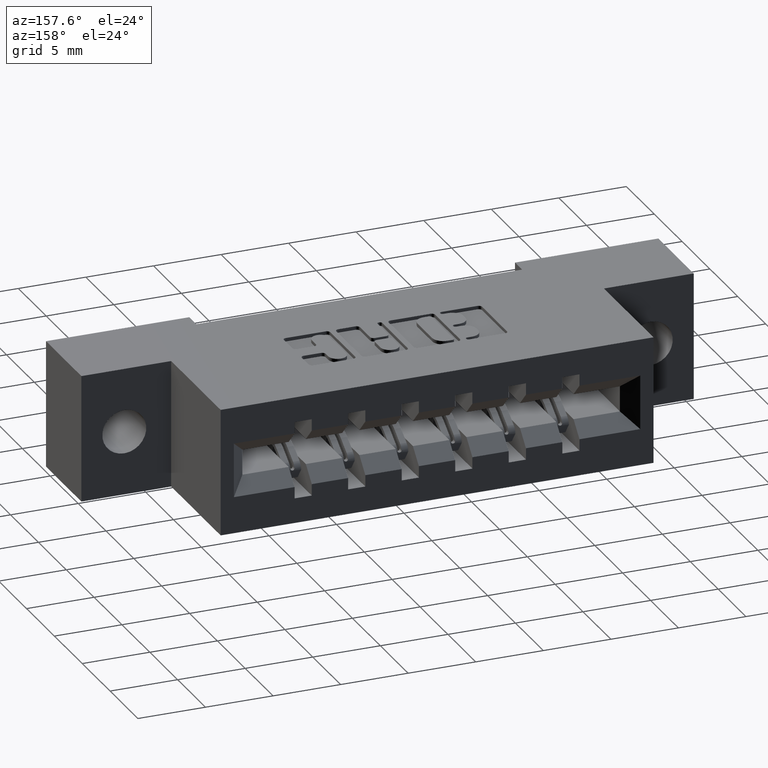
[diagram: clean part render]
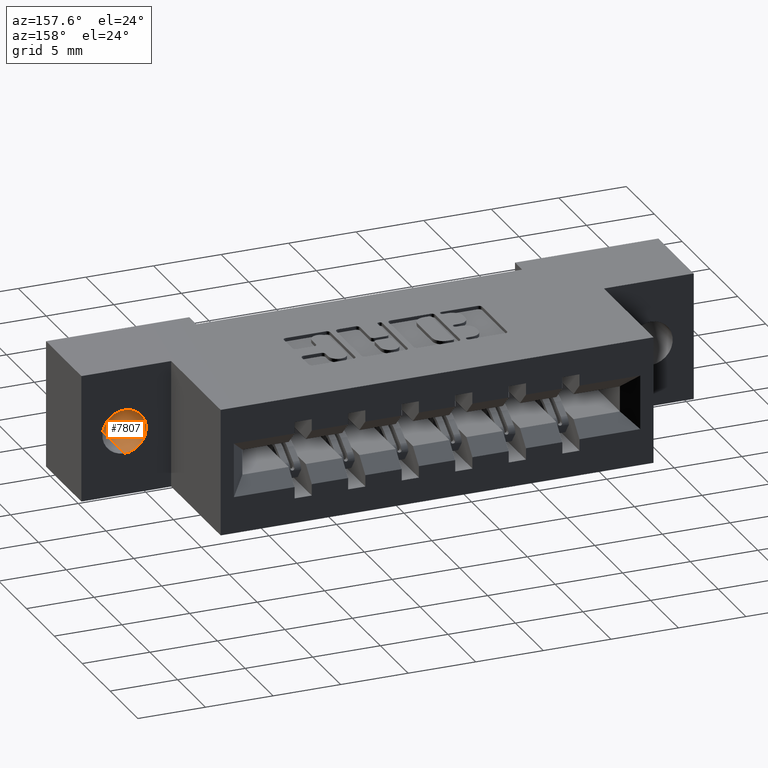
[diagram: same view with one face highlighted and labeled with its STEP entity id]
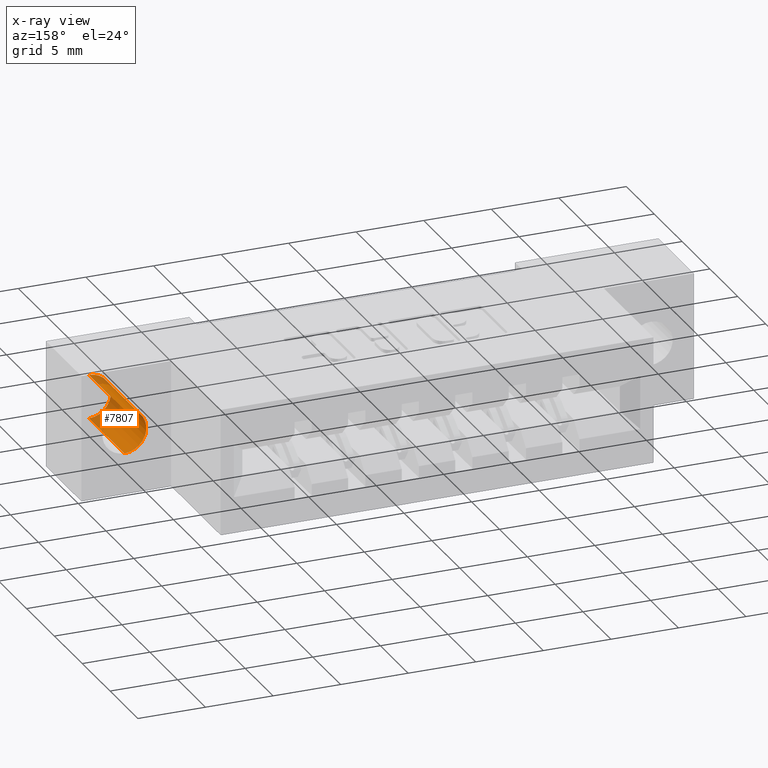
[diagram: x-ray of the same camera — body ghosted, the highlighted face saturated]
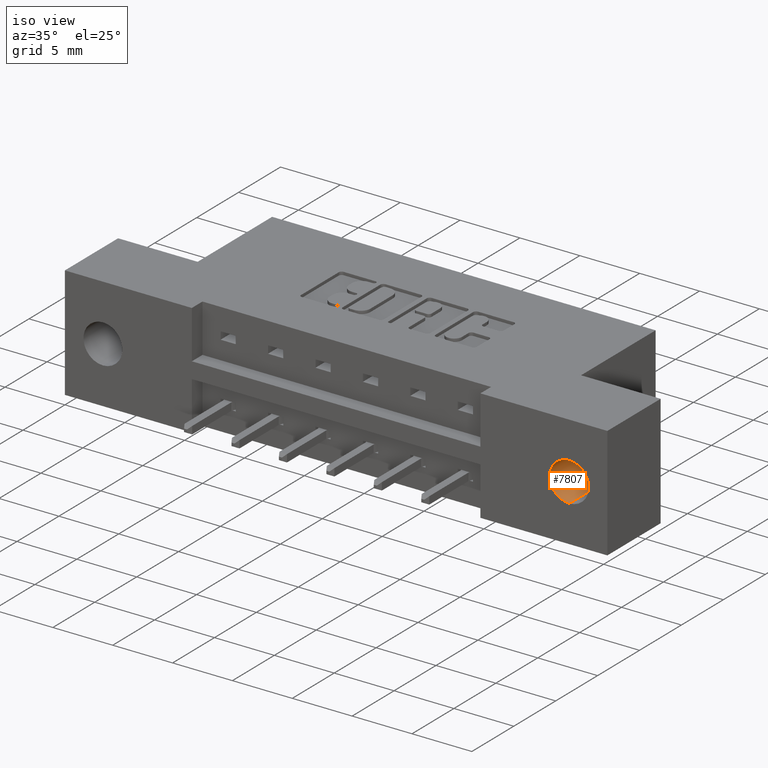
[diagram: same view with one face highlighted and labeled with its STEP entity id]
A machine part, auxiliary view. The second image highlights one B-rep face of the part: STEP entity #7807.
The next image is the same camera in x-ray: the body ghosted, the highlighted face saturated — about 22% of this face is hidden behind the body in this view.
A second angle (iso view) of the same face is appended — the face is thin or edge-on in the first view.
In plain terms, the highlighted cylindrical surface (edge-blend (fillet) strip) has radius 1.6256 mm, axis along (0, 1, 0).
Its self-contained STEP definition (entity closure, byte-faithful):
#429 = CARTESIAN_POINT ( 'NONE',  ( 1.659000000000001362, 0.2500000000000000000, -0.2490000000000000546 ) ) ;
#695 = ORIENTED_EDGE ( 'NONE', *, *, #2440, .T. ) ;
#740 = AXIS2_PLACEMENT_3D ( 'NONE', #6748, #951, #6102 ) ;
#747 = CARTESIAN_POINT ( 'NONE',  ( 1.659000000000001362, 0.0000000000000000000, -0.2490000000000000546 ) ) ;
#951 = DIRECTION ( 'NONE',  ( -0.0000000000000000000, 1.000000000000000000, -0.0000000000000000000 ) ) ;
#998 = DIRECTION ( 'NONE',  ( 0.0000000000000000000, 0.0000000000000000000, -1.000000000000000000 ) ) ;
#1136 = CARTESIAN_POINT ( 'NONE',  ( 1.659000000000001362, 0.0000000000000000000, -0.2490000000000000546 ) ) ;
#1354 = ORIENTED_EDGE ( 'NONE', *, *, #8118, .F. ) ;
#1661 = ORIENTED_EDGE ( 'NONE', *, *, #5529, .T. ) ;
#1723 = VERTEX_POINT ( 'NONE', #429 ) ;
#1789 = CARTESIAN_POINT ( 'NONE',  ( 1.659000000000001362, 0.0000000000000000000, -0.1210000000000003434 ) ) ;
#2074 = DIRECTION ( 'NONE',  ( -0.0000000000000000000, 1.000000000000000000, -0.0000000000000000000 ) ) ;
#2225 = VERTEX_POINT ( 'NONE', #1136 ) ;
#2412 = AXIS2_PLACEMENT_3D ( 'NONE', #4264, #7346, #5523 ) ;
#2417 = EDGE_LOOP ( 'NONE', ( #3673, #1661, #695, #1354 ) ) ;
#2440 = EDGE_CURVE ( 'NONE', #1723, #4236, #5783, .T. ) ;
#2643 = VECTOR ( 'NONE', #2074, 39.37007874015748143 ) ;
#3031 = CARTESIAN_POINT ( 'NONE',  ( 1.659000000000001362, 0.0000000000000000000, -0.1850000000000002198 ) ) ;
#3673 = ORIENTED_EDGE ( 'NONE', *, *, #7390, .F. ) ;
#3982 = LINE ( 'NONE', #4658, #2643 ) ;
#4033 = VECTOR ( 'NONE', #4567, 39.37007874015748143 ) ;
#4170 = CYLINDRICAL_SURFACE ( 'NONE', #740, 0.06399999999999984868 ) ;
#4220 = FACE_OUTER_BOUND ( 'NONE', #2417, .T. ) ;
#4236 = VERTEX_POINT ( 'NONE', #8219 ) ;
#4264 = CARTESIAN_POINT ( 'NONE',  ( 1.659000000000001362, 0.2500000000000000000, -0.1850000000000002198 ) ) ;
#4420 = LINE ( 'NONE', #747, #4033 ) ;
#4567 = DIRECTION ( 'NONE',  ( -0.0000000000000000000, 1.000000000000000000, -0.0000000000000000000 ) ) ;
#4658 = CARTESIAN_POINT ( 'NONE',  ( 1.659000000000001362, 0.0000000000000000000, -0.1210000000000003573 ) ) ;
#5250 = AXIS2_PLACEMENT_3D ( 'NONE', #3031, #6592, #998 ) ;
#5523 = DIRECTION ( 'NONE',  ( 0.0000000000000000000, 0.0000000000000000000, -1.000000000000000000 ) ) ;
#5529 = EDGE_CURVE ( 'NONE', #2225, #1723, #4420, .T. ) ;
#5661 = CIRCLE ( 'NONE', #5250, 0.06399999999999984868 ) ;
#5783 = CIRCLE ( 'NONE', #2412, 0.06399999999999984868 ) ;
#6102 = DIRECTION ( 'NONE',  ( 0.0000000000000000000, 0.0000000000000000000, 1.000000000000000000 ) ) ;
#6592 = DIRECTION ( 'NONE',  ( 0.0000000000000000000, 1.000000000000000000, -0.0000000000000000000 ) ) ;
#6748 = CARTESIAN_POINT ( 'NONE',  ( 1.659000000000001362, 0.0000000000000000000, -0.1850000000000002198 ) ) ;
#7346 = DIRECTION ( 'NONE',  ( 0.0000000000000000000, 1.000000000000000000, -0.0000000000000000000 ) ) ;
#7390 = EDGE_CURVE ( 'NONE', #2225, #7880, #5661, .T. ) ;
#7807 = ADVANCED_FACE ( 'NONE', ( #4220 ), #4170, .F. ) ;
#7880 = VERTEX_POINT ( 'NONE', #1789 ) ;
#8118 = EDGE_CURVE ( 'NONE', #7880, #4236, #3982, .T. ) ;
#8219 = CARTESIAN_POINT ( 'NONE',  ( 1.659000000000001362, 0.2500000000000000000, -0.1210000000000003434 ) ) ;